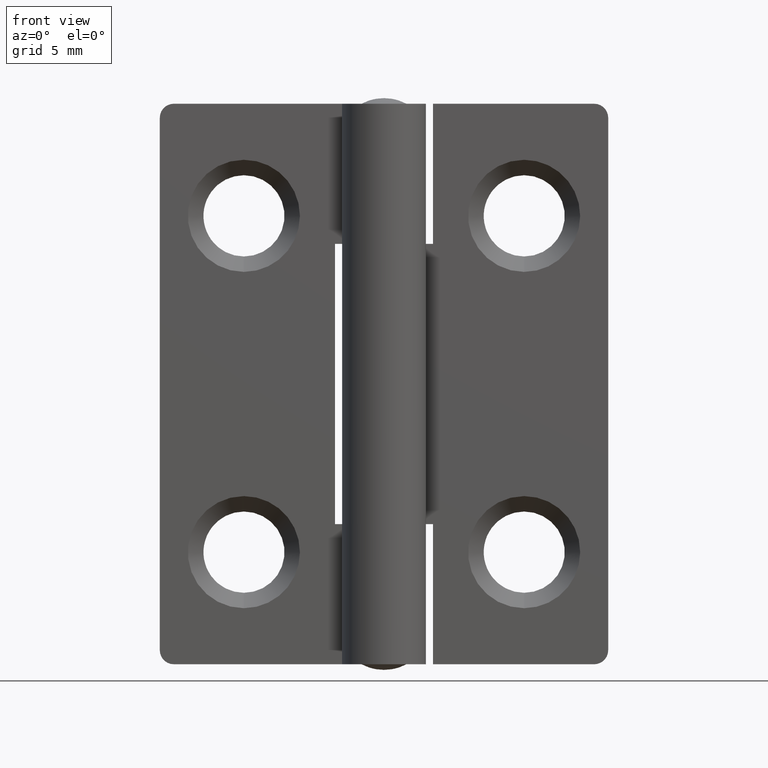
[diagram: clean part render]
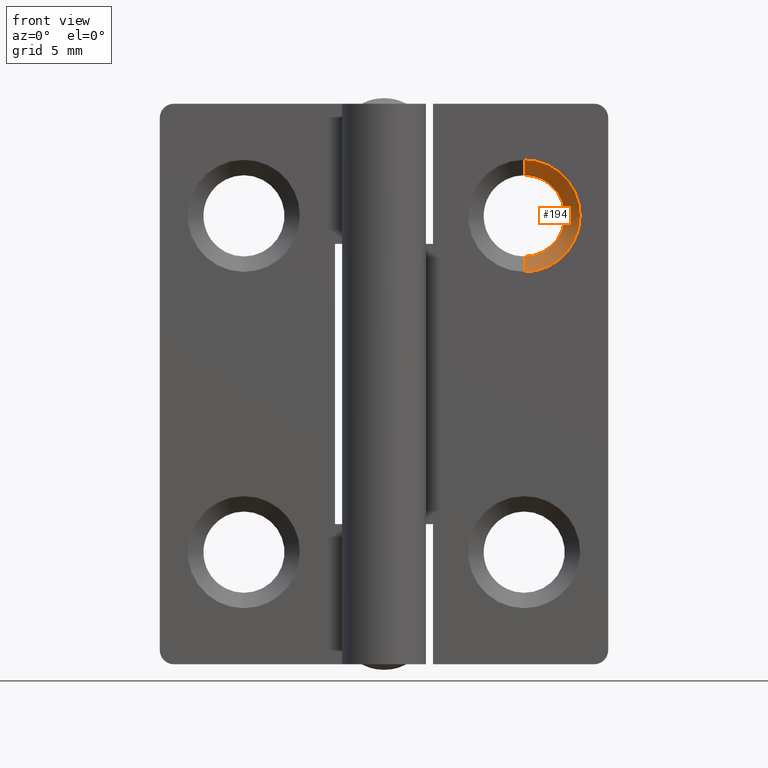
[diagram: same view with one face highlighted and labeled with its STEP entity id]
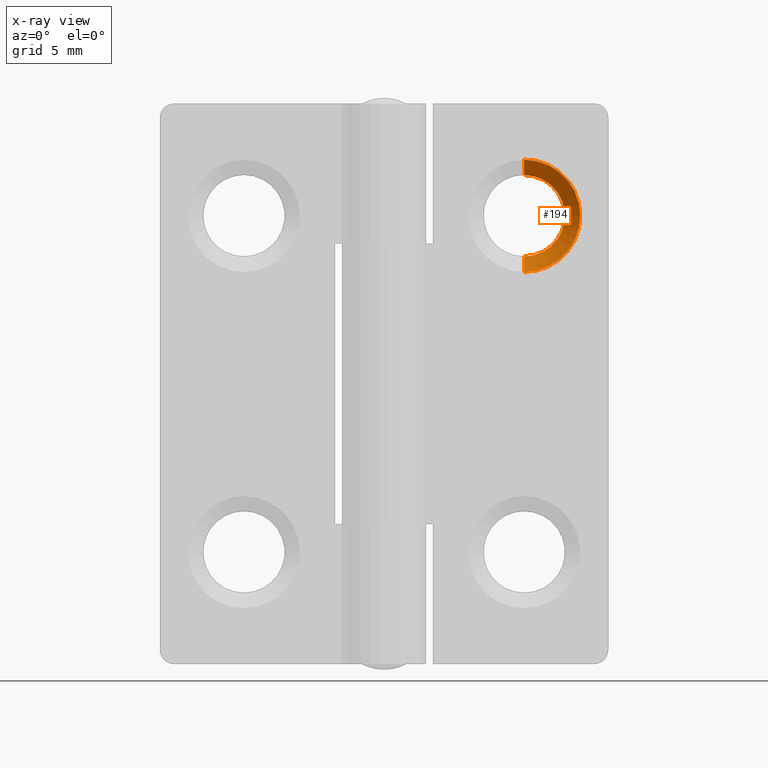
[diagram: x-ray of the same camera — body ghosted, the highlighted face saturated]
A machine part, front view. The second image highlights one B-rep face of the part: STEP entity #194.
The next image is the same camera in x-ray: the body ghosted, the highlighted face saturated — about 0% of this face is hidden behind the body in this view.
In plain terms, the highlighted face is a freeform B-spline surface patch.
Its self-contained STEP definition (entity closure, byte-faithful):
#194=ADVANCED_FACE('',(#662),#661,.F.);
#661=( BOUNDED_SURFACE() B_SPLINE_SURFACE( 2,1,((#1028,#1029),(#1030,#1031),(#1032,#1033),(#1034,#1035),(#1036,#1037)), .UNSPECIFIED.,.F.,.F.,.F.) B_SPLINE_SURFACE_WITH_KNOTS((3,2,3),(2,2),(0.00000000000E+00,5.00000000000E-01,1.00000000000E+00),(0.00000000000E+00,1.00000000000E+00), .UNSPECIFIED. ) GEOMETRIC_REPRESENTATION_ITEM() RATIONAL_B_SPLINE_SURFACE(((1.00000000000E+00,1.00000000000E+00),(7.07106781187E-01,7.07106781187E-01),(1.00000000000E+00,1.00000000000E+00),(7.07106781187E-01,7.07106781187E-01),(1.00000000000E+00,1.00000000000E+00))) REPRESENTATION_ITEM('') SURFACE() );
#662=FACE_OUTER_BOUND('',#1038,.T.);
#1028=CARTESIAN_POINT('',(1.13686837722E-13,2.49999999993E+00,2.40000000000E+01));
#1029=CARTESIAN_POINT('',(1.14379602567E-13,-3.15685424946E+00,1.83431457505E+01));
#1030=CARTESIAN_POINT('',(1.13686837722E-13,2.49999999993E+00,2.40000000000E+01));
#1031=CARTESIAN_POINT('',(5.65685424950E+00,-3.15685424946E+00,1.83431457505E+01));
#1032=CARTESIAN_POINT('',(1.13686837722E-13,2.49999999993E+00,2.40000000000E+01));
#1033=CARTESIAN_POINT('',(5.65685424950E+00,-3.15685424946E+00,2.40000000000E+01));
#1034=CARTESIAN_POINT('',(1.13686837722E-13,2.49999999993E+00,2.40000000000E+01));
#1035=CARTESIAN_POINT('',(5.65685424950E+00,-3.15685424946E+00,2.96568542495E+01));
#1036=CARTESIAN_POINT('',(1.13686837722E-13,2.49999999993E+00,2.40000000000E+01));
#1037=CARTESIAN_POINT('',(1.13686837722E-13,-3.15685424946E+00,2.96568542495E+01));
#1038=EDGE_LOOP('',(#1328,#1329,#1330,#1331,#1332));
#1328=ORIENTED_EDGE('',*,*,#1453,.F.);
#1329=ORIENTED_EDGE('',*,*,#1455,.F.);
#1330=ORIENTED_EDGE('',*,*,#1485,.F.);
#1331=ORIENTED_EDGE('',*,*,#1481,.F.);
#1332=ORIENTED_EDGE('',*,*,#1486,.T.);
#1453=EDGE_CURVE('',#2123,#2124,#2125,.T.);
#1455=EDGE_CURVE('',#2131,#2123,#2138,.T.);
#1481=EDGE_CURVE('',#2303,#2304,#2305,.T.);
#1485=EDGE_CURVE('',#2304,#2131,#2329,.T.);
#1486=EDGE_CURVE('',#2303,#2124,#2335,.T.);
#2123=VERTEX_POINT('',#2811);
#2124=VERTEX_POINT('',#2812);
#2125=CIRCLE('',#2816,4.00000000001E+00);
#2131=VERTEX_POINT('',#2817);
#2138=CIRCLE('',#2825,4.00000000001E+00);
#2303=VERTEX_POINT('',#2915);
#2304=VERTEX_POINT('',#2916);
#2305=CIRCLE('',#2920,2.90000000000E+00);
#2329=(BOUNDED_CURVE() B_SPLINE_CURVE(1,(#2929,#2930),.UNSPECIFIED.,.F.,.F.) B_SPLINE_CURVE_WITH_KNOTS((2,2),(5.12652418443E-01,7.07106785097E-01),.UNSPECIFIED.) CURVE() GEOMETRIC_REPRESENTATION_ITEM() RATIONAL_B_SPLINE_CURVE((1.00000000000E+00,1.00000000000E+00)) REPRESENTATION_ITEM('') );
#2335=(BOUNDED_CURVE() B_SPLINE_CURVE(1,(#2931,#2932),.UNSPECIFIED.,.F.,.F.) B_SPLINE_CURVE_WITH_KNOTS((2,2),(5.12652387330E-01,7.07106587738E-01),.UNSPECIFIED.) CURVE() GEOMETRIC_REPRESENTATION_ITEM() RATIONAL_B_SPLINE_CURVE((7.50000000000E-01,7.50000000000E-01)) REPRESENTATION_ITEM('') );
#2811=CARTESIAN_POINT('',(4.00000000001E+00,-1.50000000000E+00,2.40000000000E+01));
#2812=CARTESIAN_POINT('',(-4.15150941883E-04,-1.50000000000E+00,2.00000000215E+01));
#2813=CARTESIAN_POINT('',(1.13686837722E-13,-1.50000000000E+00,2.40000000000E+01));
#2814=DIRECTION('',(-7.10152422978E-15,1.00000000000E+00,1.75162308041E-46));
#2815=DIRECTION('',(1.00000000000E+00,7.10152422978E-15,-1.22460635382E-16));
#2816=AXIS2_PLACEMENT_3D('',#2813,#2814,#2815);
#2817=CARTESIAN_POINT('',(5.78649128113E-11,-1.50000000000E+00,2.80000000000E+01));
#2822=CARTESIAN_POINT('',(1.13686837722E-13,-1.50000000000E+00,2.40000000000E+01));
#2823=DIRECTION('',(-7.10152422978E-15,1.00000000000E+00,1.75162308041E-46));
#2824=DIRECTION('',(1.00000000000E+00,7.10152422978E-15,-1.22460635382E-16));
#2825=AXIS2_PLACEMENT_3D('',#2822,#2823,#2824);
#2915=CARTESIAN_POINT('',(1.13686837722E-13,-4.00000000013E-01,2.11000000000E+01));
#2916=CARTESIAN_POINT('',(1.13538807985E-13,-4.00000000013E-01,2.69000000000E+01));
#2917=CARTESIAN_POINT('',(1.13686837722E-13,-4.00000000013E-01,2.40000000000E+01));
#2918=DIRECTION('',(0.00000000000E+00,-1.00000000000E+00,-0.00000000000E+00));
#2919=DIRECTION('',(-1.22460635382E-16,0.00000000000E+00,-1.00000000000E+00));
#2920=AXIS2_PLACEMENT_3D('',#2917,#2918,#2919);
#2929=CARTESIAN_POINT('',(1.12976542575E-13,-4.00000011800E-01,2.69000000118E+01));
#2930=CARTESIAN_POINT('',(1.12707120277E-13,-1.50000002212E+00,2.80000000221E+01));
#2931=CARTESIAN_POINT('',(1.14597491296E-13,-3.99999835801E-01,2.11000001642E+01));
#2932=CARTESIAN_POINT('',(1.14942911345E-13,-1.49999890569E+00,2.00000010943E+01));